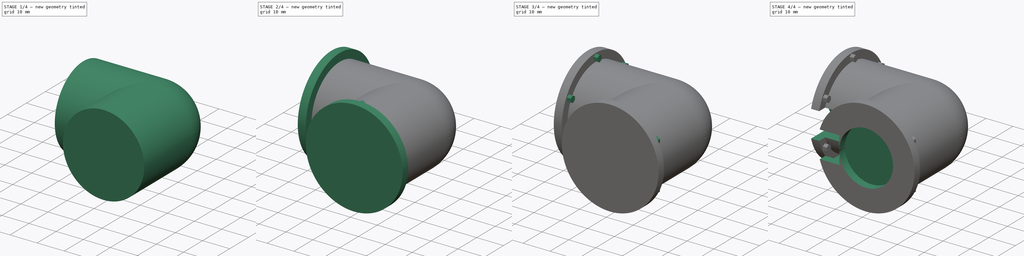
[diagram: build sequence overview — one tinted view per stage of 4, left to right]
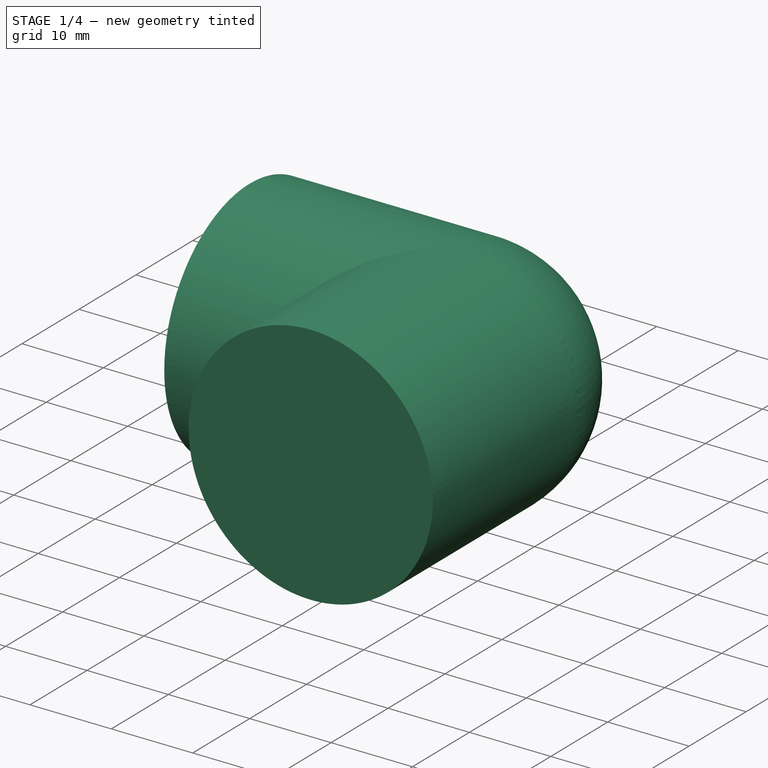
[diagram: stage 1 of 4 — iso view after this stage's code; geometry added in this stage tinted green]
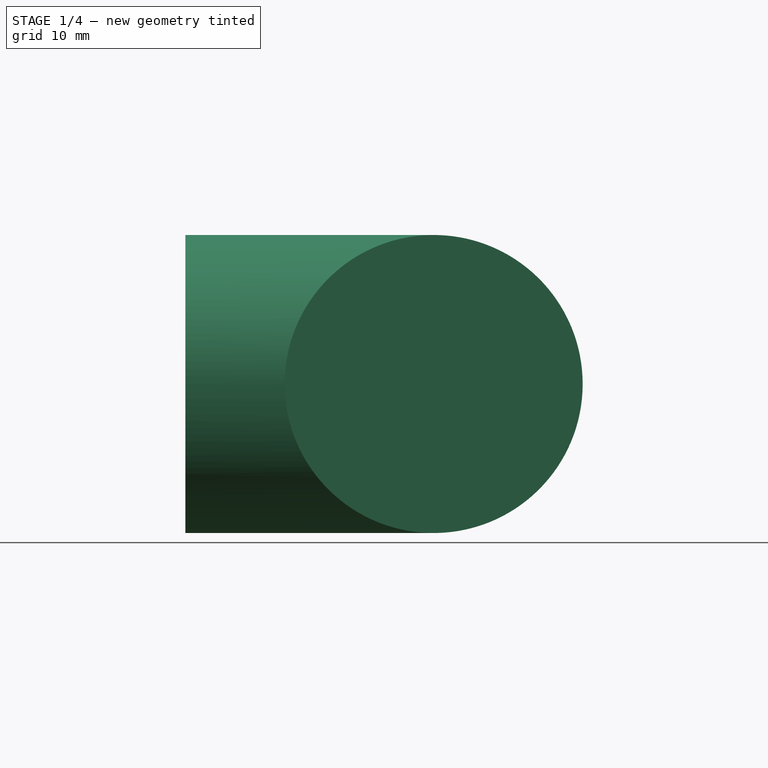
[diagram: stage 1 of 4 — front view after this stage's code; geometry added in this stage tinted green]
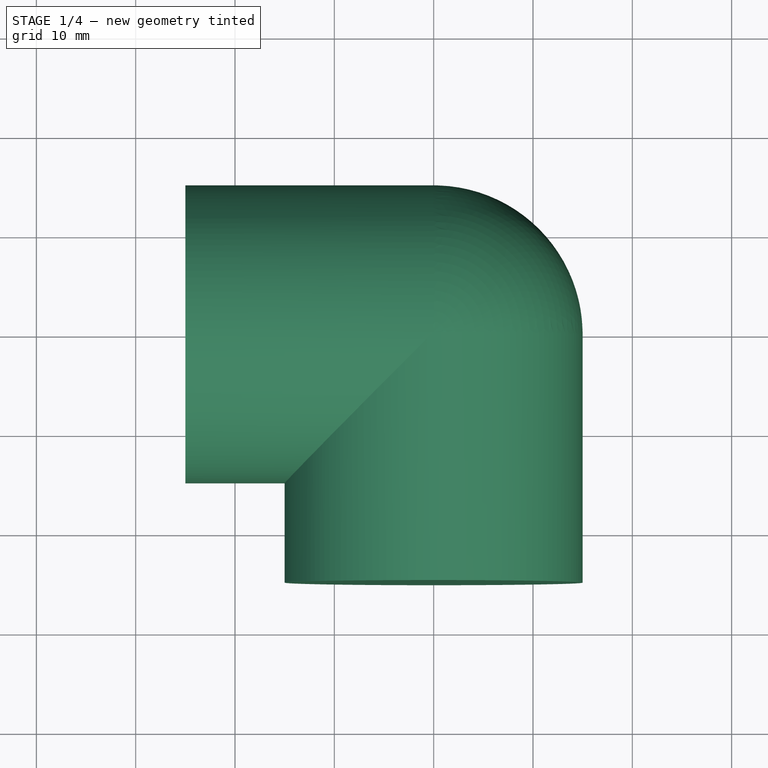
[diagram: stage 1 of 4 — top view after this stage's code; geometry added in this stage tinted green]
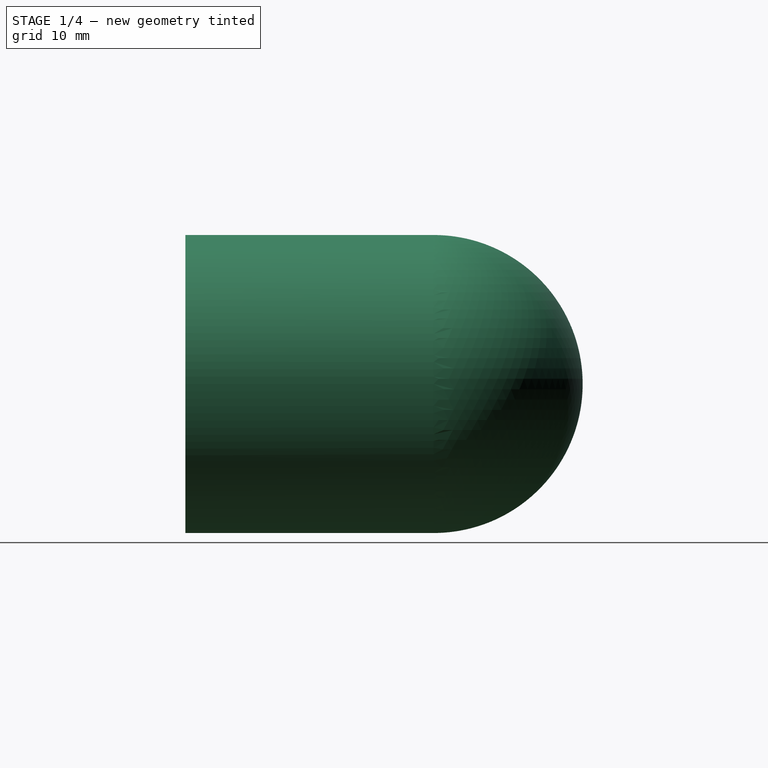
[diagram: stage 1 of 4 — right view after this stage's code; geometry added in this stage tinted green]
FCSTD DOCUMENT  (FreeCAD 0.20R29603 (Git))
Label: frameCorner
License: All rights reserved
LicenseURL: http://en.wikipedia.org/wiki/All_rights_reserved
objects: Sketcher::SketchObject×9, PartDesign::Pad×6, PartDesign::Pocket×3, App::MeasureDistance×3, PartDesign::PolarPattern×2, PartDesign::AdditiveSphere×1, PartDesign::Body×1
note: 32 computed .brp shape members not serialized (recipe doc carries the construction recipe); baked Part::Feature solids carry a one-line shape summary decoded from their .brp

FEATURE [PartDesign::AdditiveSphere] Sphere
  Angle1 = -90
  Angle2 = 90
  Angle3 = 90
  AttacherType = Attacher::AttachEngine3D
  Radius = 15
FEATURE [Sketcher::SketchObject] Sketch  label="Pipe"
  FullyConstrained = true
  MapMode = 5
  Placement = pos=(0,0,0) rot=(1,0,0;1.5708rad)
  Support = -> [Sphere]
  sketch-geometry (1):
    g0: Circle CenterX=0 CenterY=0 CenterZ=0 NormalX=0 NormalY=0 NormalZ=1 AngleXU=0 Radius=15
  constraints (2):
    c: Coincident(g0,g-1)
    c: Diameter(g0) = 30
FEATURE [PartDesign::Pad] Pad  label="PadPipe"
  BaseFeature = -> Sphere
  Direction = (0,-1,2e-16)
  Length = 25
  Length2 = 10
  Profile = -> Sketch
  ReferenceAxis = -> Sketch [N_Axis]
  Type = 0
FEATURE [Sketcher::SketchObject] Sketch001  label="pipe001"
  FullyConstrained = true
  MapMode = 5
  Placement = pos=(0,0,0) rot=(-0.57735,0.57735,0.57735;4.18879rad)
  Support = -> [Pad]
  sketch-geometry (1):
    g0: Circle CenterX=0 CenterY=0 CenterZ=0 NormalX=0 NormalY=0 NormalZ=1 AngleXU=0 Radius=15
  constraints (2):
    c: Coincident(g0,g-1)
    c: Diameter(g0) = 30
FEATURE [PartDesign::Pad] Pad001  label="PadPipe001"
  BaseFeature = -> Pad
  Direction = (-1,0,0)
  Length = 25
  Length2 = 10
  Profile = -> Sketch001
  ReferenceAxis = -> Sketch001 [N_Axis]
  Type = 0
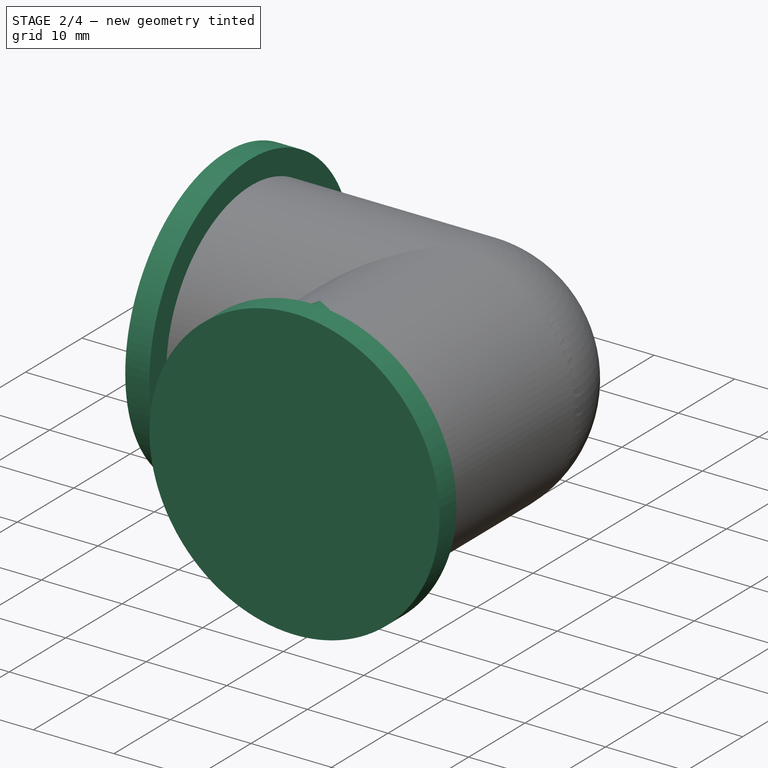
[diagram: stage 2 of 4 — iso view after this stage's code; geometry added in this stage tinted green]
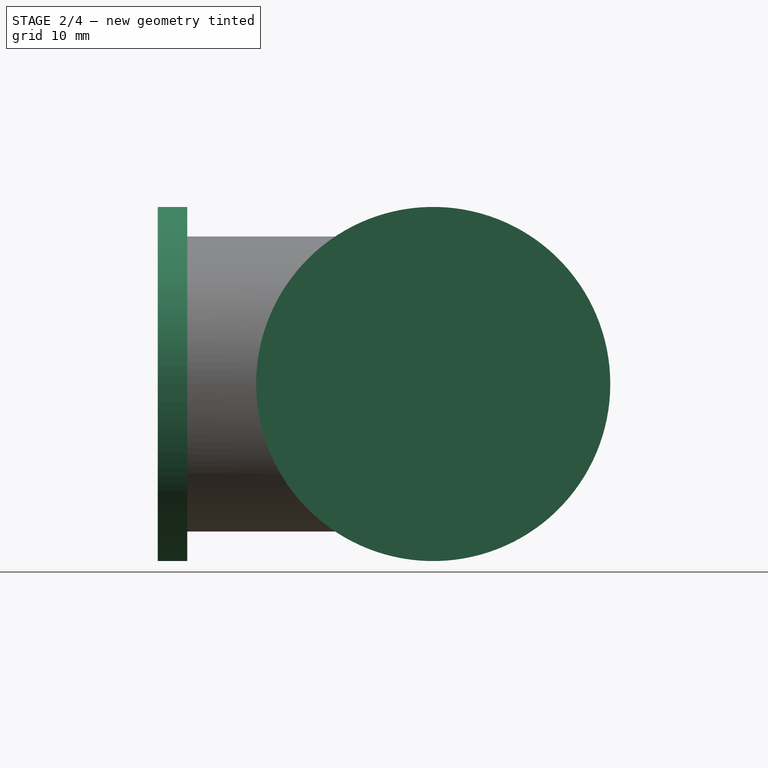
[diagram: stage 2 of 4 — front view after this stage's code; geometry added in this stage tinted green]
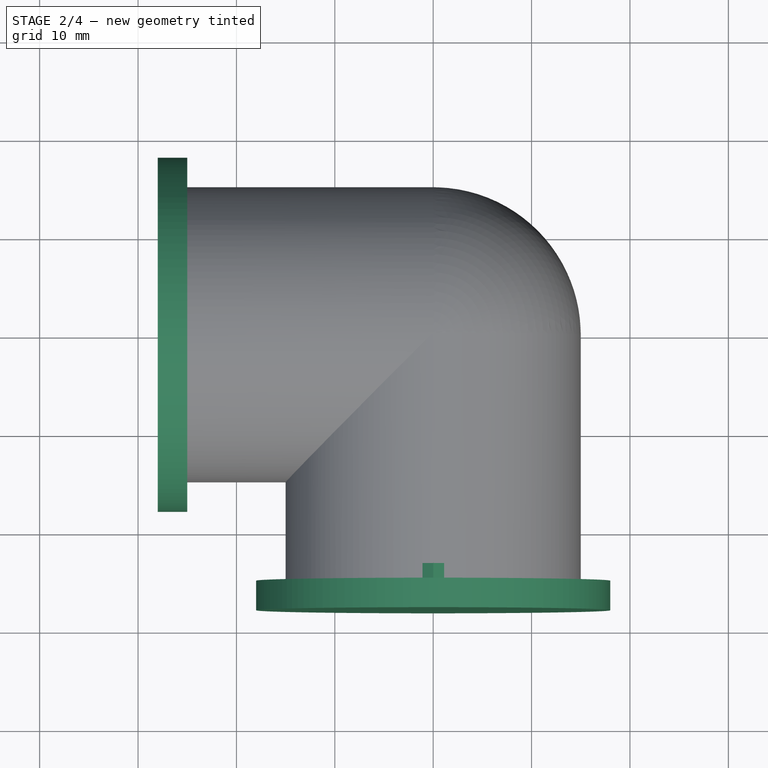
[diagram: stage 2 of 4 — top view after this stage's code; geometry added in this stage tinted green]
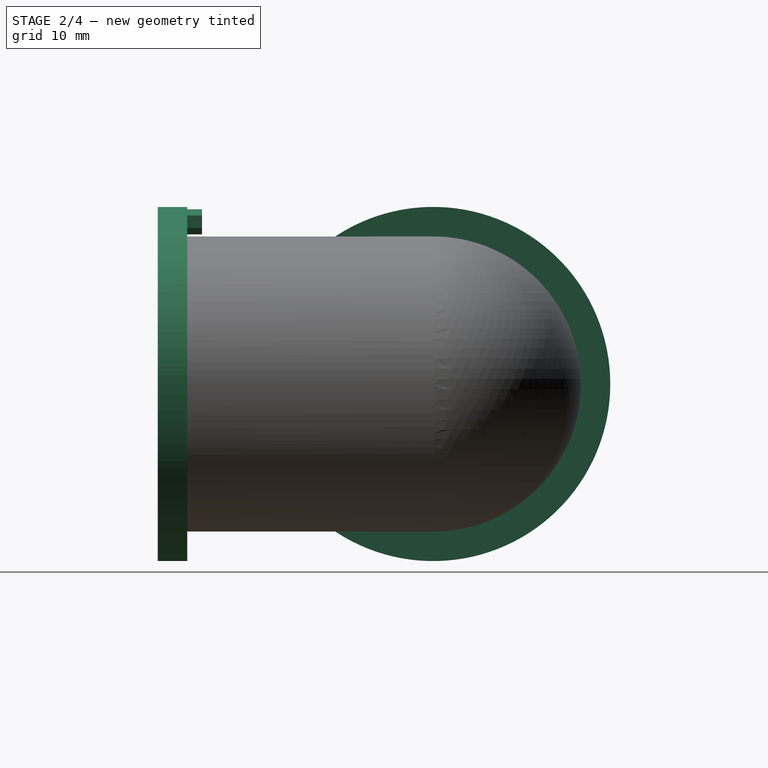
[diagram: stage 2 of 4 — right view after this stage's code; geometry added in this stage tinted green]
FEATURE [Sketcher::SketchObject] Sketch002  label="Flang"
  FullyConstrained = true
  MapMode = 5
  Placement = pos=(-25,0,0) rot=(0.57735,-0.57735,-0.57735;2.0944rad)
  Support = -> [Pad001]
  sketch-geometry (1):
    g0: Circle CenterX=0 CenterY=0 CenterZ=0 NormalX=0 NormalY=0 NormalZ=1 AngleXU=0 Radius=18
  constraints (2):
    c: Coincident(g0,g-1)
    c: Diameter(g0) = 36
FEATURE [PartDesign::Pad] Pad002  label="PadFlang"
  BaseFeature = -> Pad001
  Direction = (-1,0,0)
  Length = 3
  Length2 = 10
  Profile = -> Sketch002
  ReferenceAxis = -> Sketch002 [N_Axis]
  Type = 0
FEATURE [Sketcher::SketchObject] Sketch003  label="Flang001"
  FullyConstrained = true
  MapMode = 5
  Placement = pos=(0,-25,5.5e-15) rot=(1,0,0;1.5708rad)
  Support = -> [Pad002]
  sketch-geometry (1):
    g0: Circle CenterX=0 CenterY=0 CenterZ=0 NormalX=0 NormalY=0 NormalZ=1 AngleXU=0 Radius=18
  constraints (2):
    c: Coincident(g0,g-1)
    c: Diameter(g0) = 36
FEATURE [PartDesign::Pad] Pad003  label="PadFlang001"
  BaseFeature = -> Pad002
  Direction = (0,-1,2e-16)
  Length = 3
  Length2 = 10
  Profile = -> Sketch003
  ReferenceAxis = -> Sketch003 [N_Axis]
  Type = 0
FEATURE [Sketcher::SketchObject] Sketch004  label="bolt"
  ExternalGeometry = -> [Pad003]
  FullyConstrained = false
  MapMode = 5
  Placement = pos=(0,-25,5.7e-15) rot=(0,0.707107,0.707107;3.14159rad)
  Support = -> [Pad003]
  sketch-geometry (6):
    g0: LineSegment StartX=-1.11579 StartY=17.1217 StartZ=0 EndX=-0.012041 EndY=17.7589 EndZ=0
    g1: LineSegment StartX=-0.012041 StartY=17.7589 StartZ=0 EndX=1.09171 EndY=17.1217 EndZ=0
    g2: LineSegment StartX=1.09171 StartY=17.1217 StartZ=0 EndX=1.09171 EndY=15.8472 EndZ=0
    g3: LineSegment StartX=1.09171 StartY=15.8472 StartZ=0 EndX=-0.012041 EndY=15.2099 EndZ=0
    g4: LineSegment StartX=-0.012041 StartY=15.2099 StartZ=0 EndX=-1.11579 EndY=15.8472 EndZ=0
    g5: LineSegment StartX=-1.11579 StartY=15.8472 StartZ=0 EndX=-1.11579 EndY=17.1217 EndZ=0
  constraints (14):
    c: Coincident(g5,g0)
    c: Coincident(g4,g5)
    c: Coincident(g3,g4)
    c: Coincident(g2,g3)
    c: Coincident(g2,g1)
    c: Coincident(g1,g0)
    c: Equal(g4,g5)
    c: Equal(g0,g5)
    c: Equal(g1,g0)
    c: Equal(g1,g2)
    c: Equal(g2,g3)
    c: Angle(g0,g1) = 2.0944
    c: Angle(g5,g0) = 2.0944
    c: Angle(g4,g5) = 2.0944
FEATURE [PartDesign::Pad] Pad004  label="PadBolt"
  BaseFeature = -> Pad003
  Direction = (0,1,-2e-16)
  Length = 1.5
  Length2 = 10
  Profile = -> Sketch004
  ReferenceAxis = -> Sketch004 [N_Axis]
  Type = 0
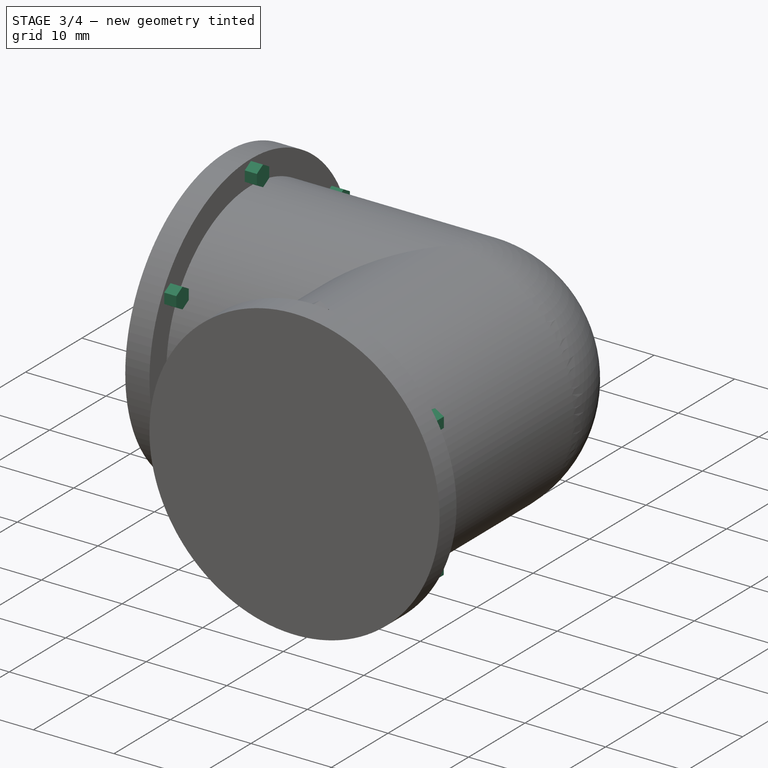
[diagram: stage 3 of 4 — iso view after this stage's code; geometry added in this stage tinted green]
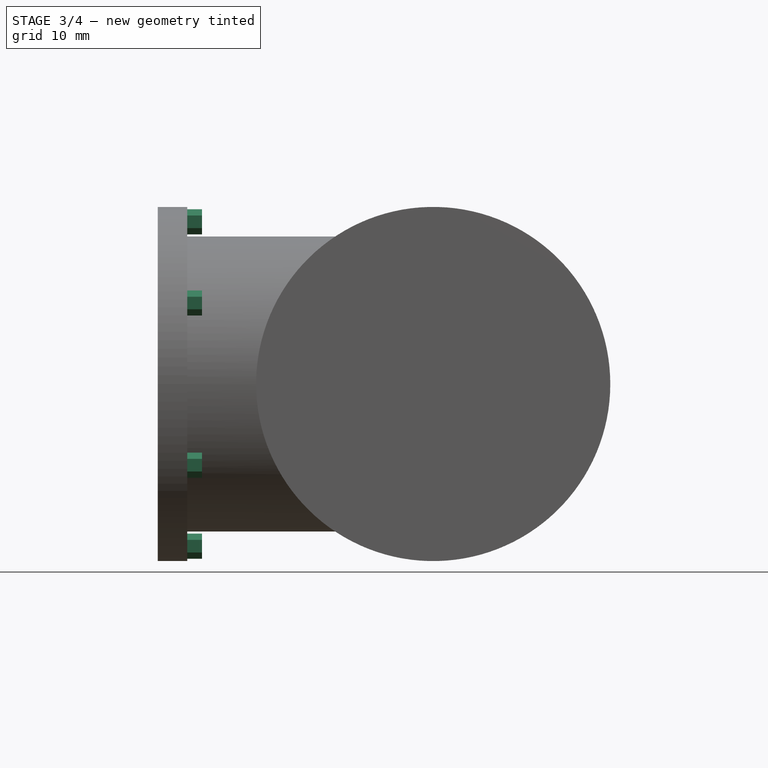
[diagram: stage 3 of 4 — front view after this stage's code; geometry added in this stage tinted green]
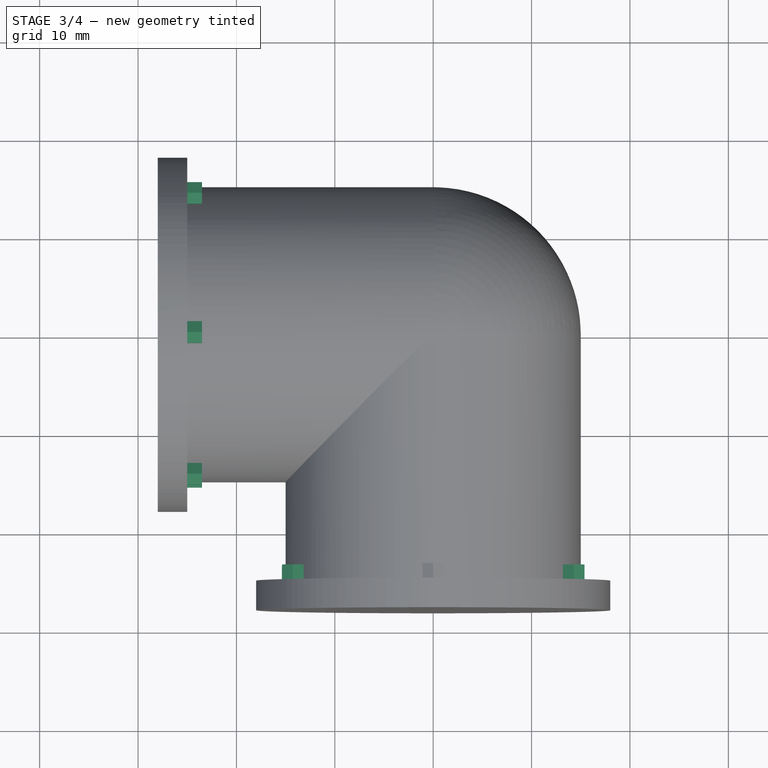
[diagram: stage 3 of 4 — top view after this stage's code; geometry added in this stage tinted green]
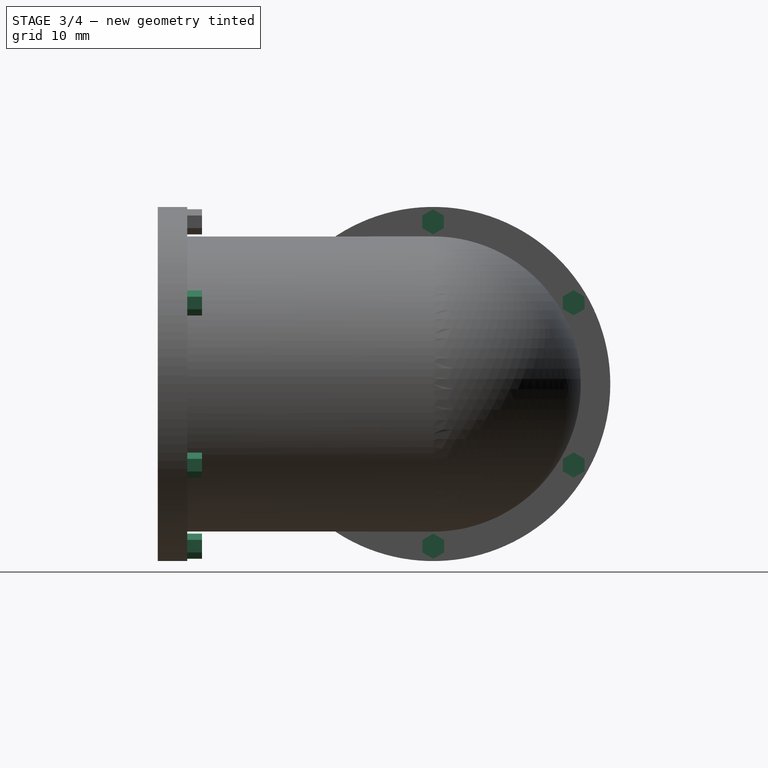
[diagram: stage 3 of 4 — right view after this stage's code; geometry added in this stage tinted green]
FEATURE [PartDesign::PolarPattern] PolarPattern
  Angle = 360
  Axis = -> Sketch004 [N_Axis]
  BaseFeature = -> Pad004
  Occurrences = 6
  Originals = -> [Pad004]
FEATURE [Sketcher::SketchObject] Sketch009  label="bolt001"
  FullyConstrained = false
  MapMode = 5
  Placement = pos=(-25,0,0) rot=(0.57735,0.57735,0.57735;2.0944rad)
  Support = -> [PolarPattern]
  sketch-geometry (6):
    g0: LineSegment StartX=-1.11579 StartY=17.1217 StartZ=0 EndX=-0.012041 EndY=17.7589 EndZ=0
    g1: LineSegment StartX=-0.012041 StartY=17.7589 StartZ=0 EndX=1.09171 EndY=17.1217 EndZ=0
    g2: LineSegment StartX=1.09171 StartY=17.1217 StartZ=0 EndX=1.09171 EndY=15.8472 EndZ=0
    g3: LineSegment StartX=1.09171 StartY=15.8472 StartZ=0 EndX=-0.012041 EndY=15.2099 EndZ=0
    g4: LineSegment StartX=-0.012041 StartY=15.2099 StartZ=0 EndX=-1.11579 EndY=15.8472 EndZ=0
    g5: LineSegment StartX=-1.11579 StartY=15.8472 StartZ=0 EndX=-1.11579 EndY=17.1217 EndZ=0
  constraints (14):
    c: Coincident(g5,g0)
    c: Coincident(g4,g5)
    c: Coincident(g3,g4)
    c: Coincident(g2,g3)
    c: Coincident(g2,g1)
    c: Coincident(g1,g0)
    c: Equal(g4,g5)
    c: Equal(g0,g5)
    c: Equal(g1,g0)
    c: Equal(g1,g2)
    c: Equal(g2,g3)
    c: Angle(g0,g1) = 2.0944
    c: Angle(g5,g0) = 2.0944
    c: Angle(g4,g5) = 2.0944
FEATURE [PartDesign::Pad] Pad005  label="PadBolt001"
  BaseFeature = -> PolarPattern
  Direction = (1,0,0)
  Length = 1.5
  Length2 = 10
  Profile = -> Sketch009
  ReferenceAxis = -> Sketch009 [N_Axis]
  Type = 0
FEATURE [PartDesign::PolarPattern] PolarPattern001
  Angle = 360
  Axis = -> Sketch009 [N_Axis]
  BaseFeature = -> Pad005
  Occurrences = 6
  Originals = -> [Pad005]
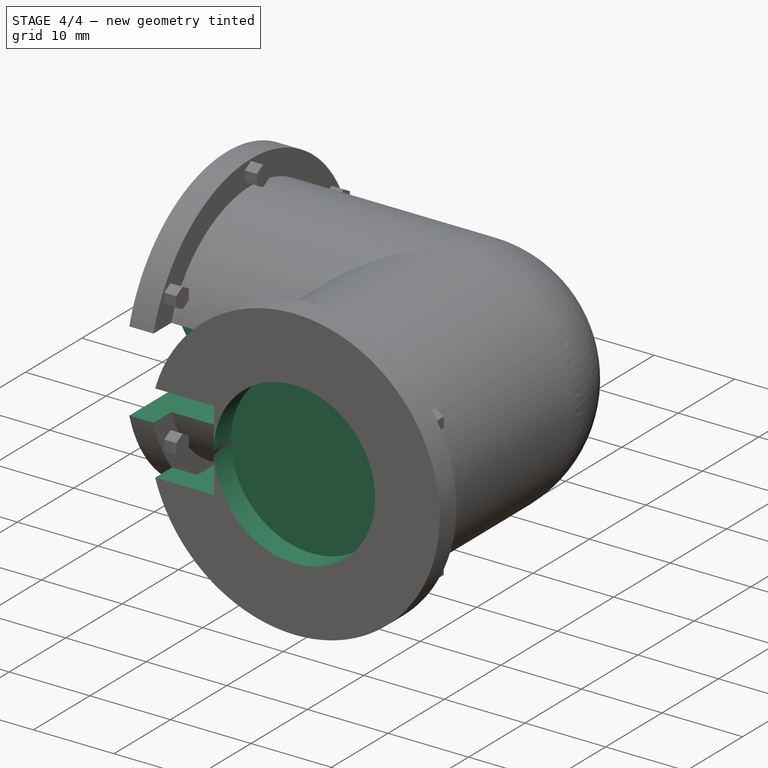
[diagram: stage 4 of 4 — iso view after this stage's code; geometry added in this stage tinted green]
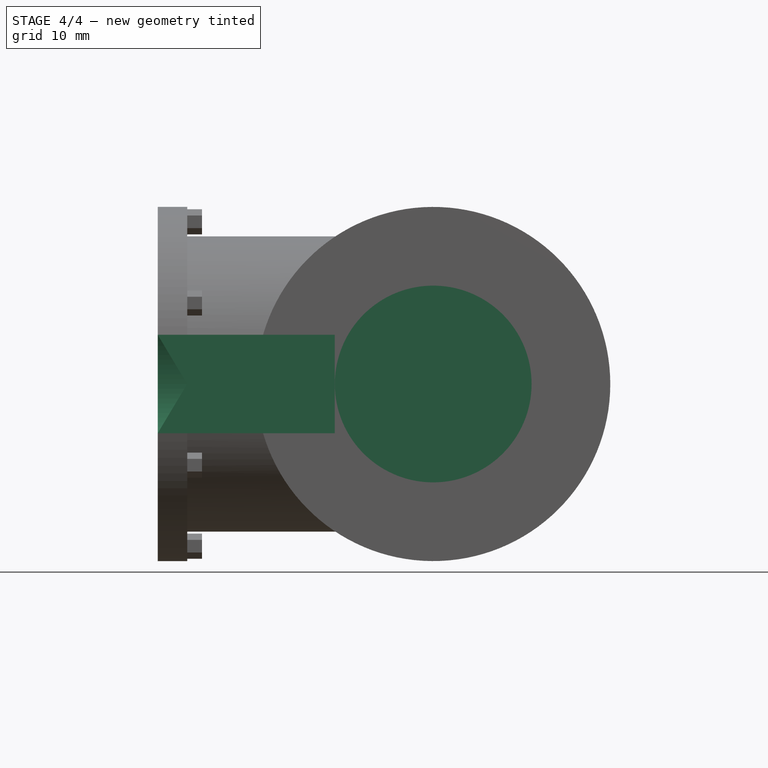
[diagram: stage 4 of 4 — front view after this stage's code; geometry added in this stage tinted green]
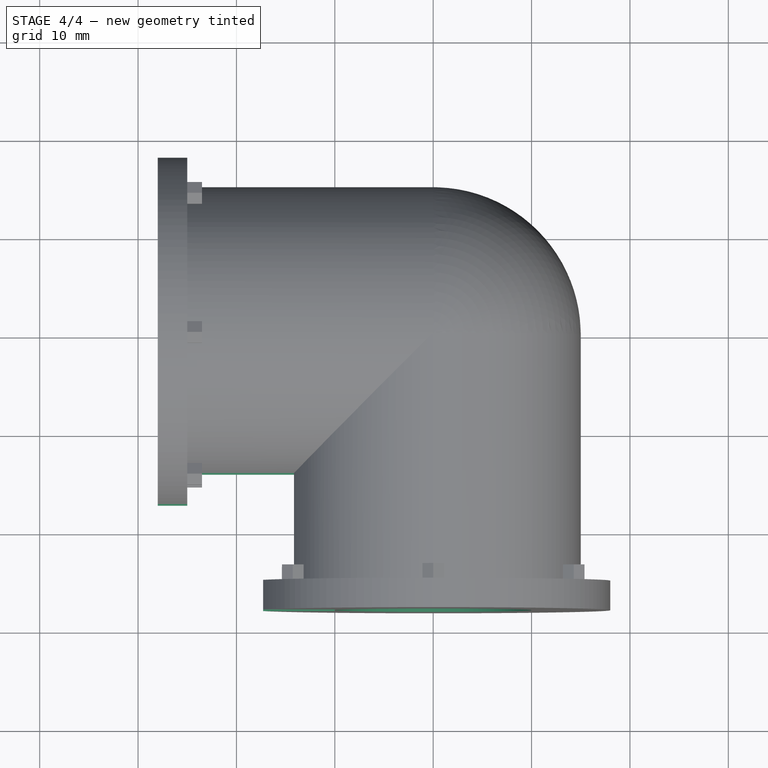
[diagram: stage 4 of 4 — top view after this stage's code; geometry added in this stage tinted green]
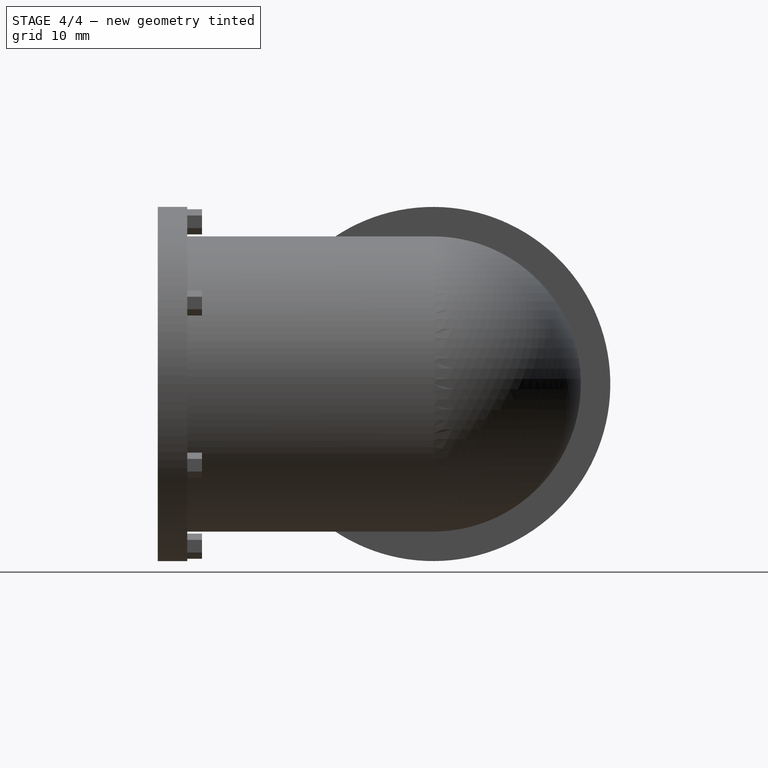
[diagram: stage 4 of 4 — right view after this stage's code; geometry added in this stage tinted green]
FEATURE [Sketcher::SketchObject] Sketch010  label="groove"
  ExternalGeometry = -> [PolarPattern001]
  FullyConstrained = true
  MapMode = 5
  Placement = pos=(0,-28,6.4e-15) rot=(1,0,0;1.5708rad)
  Support = -> [PolarPattern001]
  sketch-geometry (4):
    g0: LineSegment StartX=-28 StartY=5 StartZ=0 EndX=-10 EndY=5 EndZ=0
    g1: LineSegment StartX=-10 StartY=5 StartZ=0 EndX=-10 EndY=-5 EndZ=0
    g2: LineSegment StartX=-10 StartY=-5 StartZ=0 EndX=-28 EndY=-5 EndZ=0
    g3: LineSegment StartX=-28 StartY=-5 StartZ=0 EndX=-28 EndY=5 EndZ=0
  constraints (12):
    c: Coincident(g0,g1)
    c: Coincident(g1,g2)
    c: Coincident(g2,g3)
    c: Coincident(g3,g0)
    c: Horizontal(g0)
    c: Horizontal(g2)
    c: Vertical(g1)
    c: Vertical(g3)
    c: DistanceY(g1,g1) = 10
    c: DistanceY(g-1,g0) = 5
    c: DistanceX(g0,g-1) = 10
    c: DistanceX(g-3,g0) = 0
FEATURE [PartDesign::Pocket] Pocket
  BaseFeature = -> PolarPattern001
  Direction = (0,1,-2e-16)
  Length = 18
  Length2 = 5
  Profile = -> Sketch010
  ReferenceAxis = -> Sketch010 [N_Axis]
  Type = 0
FEATURE [Sketcher::SketchObject] Sketch011  label="peghole"
  FullyConstrained = true
  MapMode = 5
  Placement = pos=(0,-28,6.4e-15) rot=(1,0,0;1.5708rad)
  Support = -> [Pocket]
  sketch-geometry (1):
    g0: Circle CenterX=0 CenterY=0 CenterZ=0 NormalX=0 NormalY=0 NormalZ=1 AngleXU=0 Radius=10
  constraints (2):
    c: Coincident(g0,g-1)
    c: Diameter(g0) = 20
FEATURE [PartDesign::Pocket] Pocket001
  BaseFeature = -> Pocket
  Direction = (0,1,-2e-16)
  Length = 3
  Length2 = 5
  Profile = -> Sketch011
  ReferenceAxis = -> Sketch011 [N_Axis]
  Type = 0
FEATURE [Sketcher::SketchObject] Sketch012  label="peghole001"
  FullyConstrained = true
  MapMode = 5
  Placement = pos=(-28,0,0) rot=(0.57735,-0.57735,-0.57735;2.0944rad)
  Support = -> [Pocket001]
  sketch-geometry (1):
    g0: Circle CenterX=0 CenterY=0 CenterZ=0 NormalX=0 NormalY=0 NormalZ=1 AngleXU=0 Radius=10
  constraints (2):
    c: Coincident(g0,g-1)
    c: Diameter(g0) = 20
FEATURE [PartDesign::Pocket] Pocket002
  BaseFeature = -> Pocket001
  Direction = (1,0,0)
  Length = 3
  Length2 = 5
  Profile = -> Sketch012
  ReferenceAxis = -> Sketch012 [N_Axis]
  Type = 0
FEATURE [PartDesign::Body] Body
  Group = -> [Sphere,Sketch,Pad,Sketch001,Pad001,Sketch002,Pad002,Sketch003,Pad003,Sketch004,Pad004,PolarPattern,Sketch009,Pad005,PolarPattern001,Sketch010,Pocket,Sketch011,Pocket001,Sketch012,Pocket002]
  Origin = -> Origin
  Tip = -> Pocket002
FEATURE [App::MeasureDistance] Distance  label="Distance: 4,83 mm"
  Distance = 4.8254
  P1 = (-10,-14.8522,0.704708)
  P2 = (-10,-10.0423,0.31872)
FEATURE [App::MeasureDistance] Distance001  label="Distance: 18,05 mm"
  Distance = 18.0469
  P1 = (-10,-28,-1.91188)
  P2 = (-10.0168,-10,-0.611298)
FEATURE [App::MeasureDistance] Distance002  label="Distance: 19,87 mm"
  Distance = 19.8677
  P1 = (-28,-9.95468,-0.489094)
  P2 = (-28,9.90614,-1.01289)
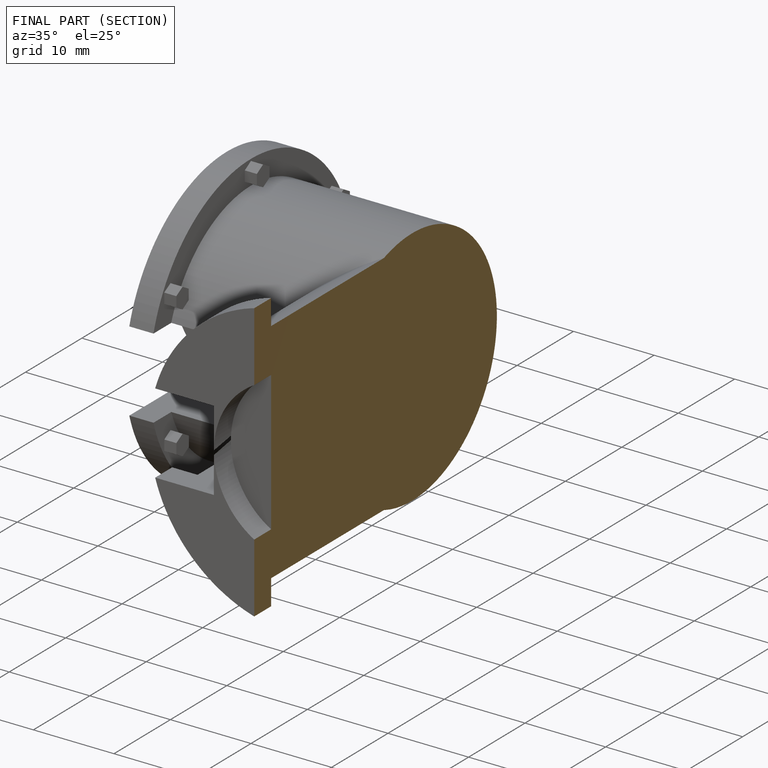
[diagram: finished part — half-section view (interior)]
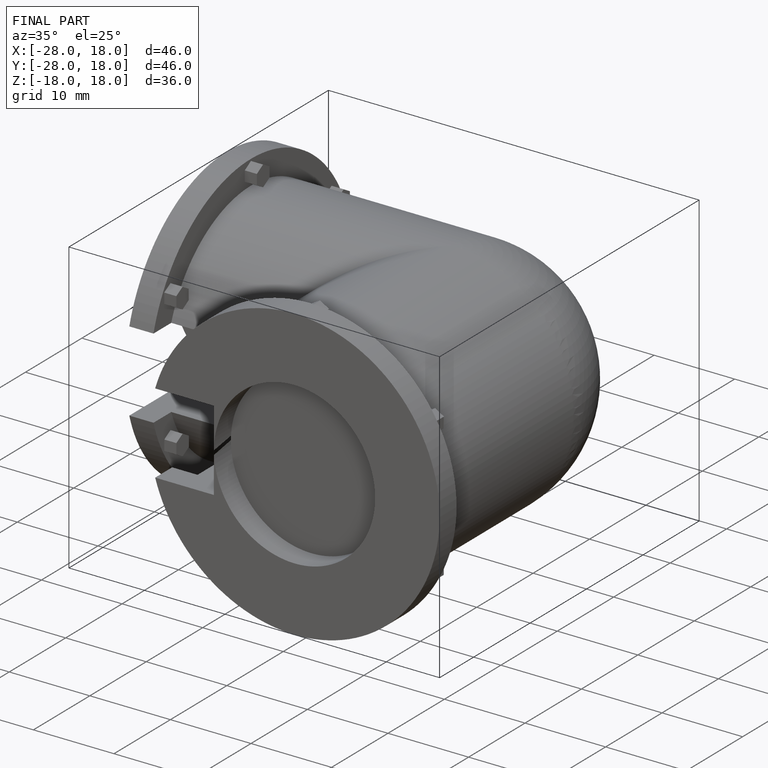
[diagram: finished part — iso view with bounding-box wireframe]
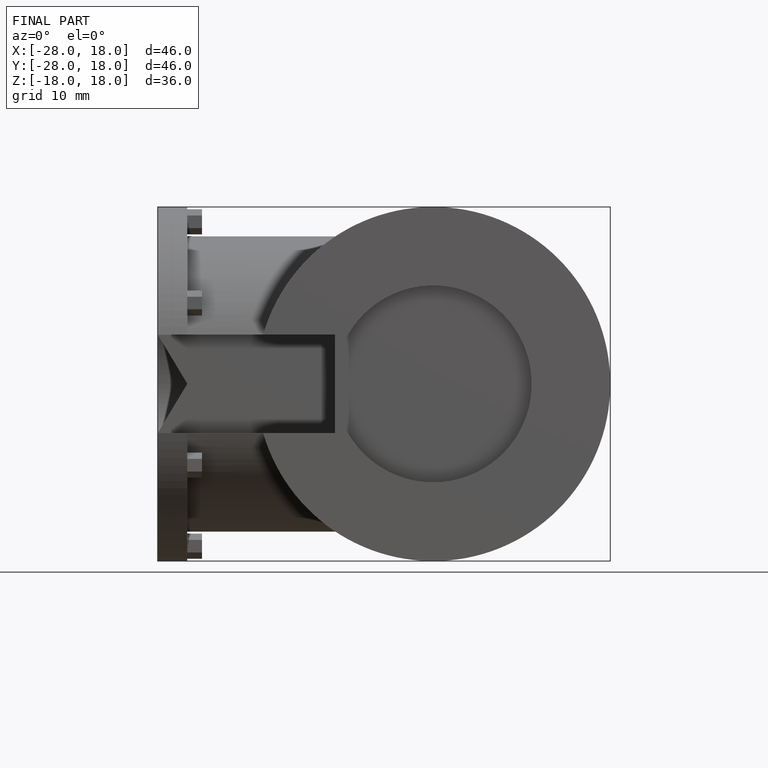
[diagram: finished part — front view with bounding-box wireframe]
